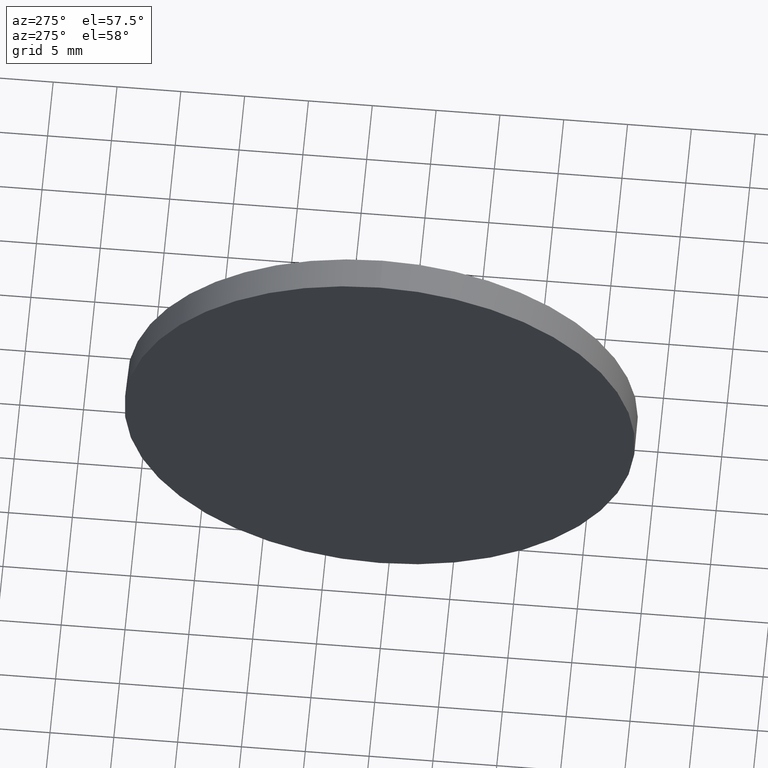
[diagram: clean part render]
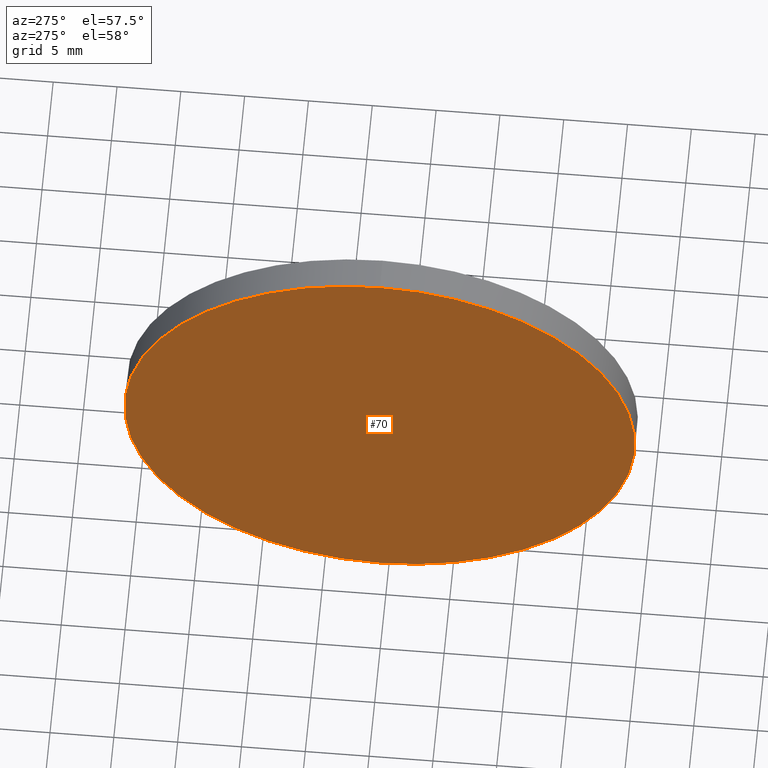
[diagram: same view with one face highlighted and labeled with its STEP entity id]
A machine part, auxiliary view. The second image highlights one B-rep face of the part: STEP entity #70.
In plain terms, the highlighted planar face has unit normal (1, 0, 0).
Its self-contained STEP definition (entity closure, byte-faithful):
#10 = CARTESIAN_POINT ( 'NONE',  ( 447.3436897934086600, 15.68604631740493000, 0.0000000000000000000 ) ) ;
#17 = PLANE ( 'NONE',  #167 ) ;
#20 = DIRECTION ( 'NONE',  ( 0.0000000000000000000, 0.0000000000000000000, 1.000000000000000000 ) ) ;
#32 = DIRECTION ( 'NONE',  ( 0.0000000000000000000, 0.0000000000000000000, -1.000000000000000000 ) ) ;
#37 = DIRECTION ( 'NONE',  ( -1.000000000000000000, -0.0000000000000000000, -0.0000000000000000000 ) ) ;
#60 = CARTESIAN_POINT ( 'NONE',  ( 447.3436897934086600, 15.68604631740493000, 0.0000000000000000000 ) ) ;
#70 = ADVANCED_FACE ( 'NONE', ( #153 ), #17, .F. ) ;
#79 = DIRECTION ( 'NONE',  ( 0.0000000000000000000, 0.0000000000000000000, 1.000000000000000000 ) ) ;
#81 = DIRECTION ( 'NONE',  ( -1.000000000000000000, -0.0000000000000000000, -0.0000000000000000000 ) ) ;
#99 = VERTEX_POINT ( 'NONE', #144 ) ;
#102 = ORIENTED_EDGE ( 'NONE', *, *, #139, .T. ) ;
#105 = DIRECTION ( 'NONE',  ( 1.000000000000000000, 0.0000000000000000000, 0.0000000000000000000 ) ) ;
#107 = VERTEX_POINT ( 'NONE', #159 ) ;
#115 = CIRCLE ( 'NONE', #170, 19.99999999999999600 ) ;
#120 = ORIENTED_EDGE ( 'NONE', *, *, #178, .T. ) ;
#139 = EDGE_CURVE ( 'NONE', #99, #107, #151, .T. ) ;
#144 = CARTESIAN_POINT ( 'NONE',  ( 447.3436897934086600, 15.68604631740493400, -19.99999999999999600 ) ) ;
#147 = CARTESIAN_POINT ( 'NONE',  ( 447.3436897934086600, 15.68604631740493000, 0.0000000000000000000 ) ) ;
#150 = EDGE_LOOP ( 'NONE', ( #120, #102 ) ) ;
#151 = CIRCLE ( 'NONE', #156, 19.99999999999999600 ) ;
#153 = FACE_OUTER_BOUND ( 'NONE', #150, .T. ) ;
#156 = AXIS2_PLACEMENT_3D ( 'NONE', #147, #81, #20 ) ;
#159 = CARTESIAN_POINT ( 'NONE',  ( 447.3436897934086600, 15.68604631740493000, 19.99999999999999600 ) ) ;
#167 = AXIS2_PLACEMENT_3D ( 'NONE', #60, #105, #32 ) ;
#170 = AXIS2_PLACEMENT_3D ( 'NONE', #10, #37, #79 ) ;
#178 = EDGE_CURVE ( 'NONE', #107, #99, #115, .T. ) ;